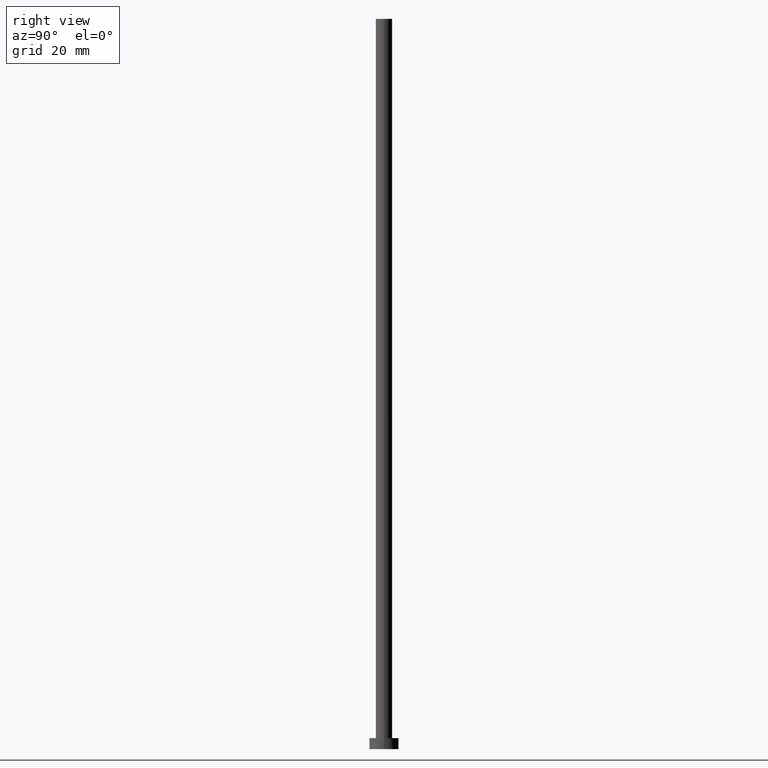
[diagram: clean part render]
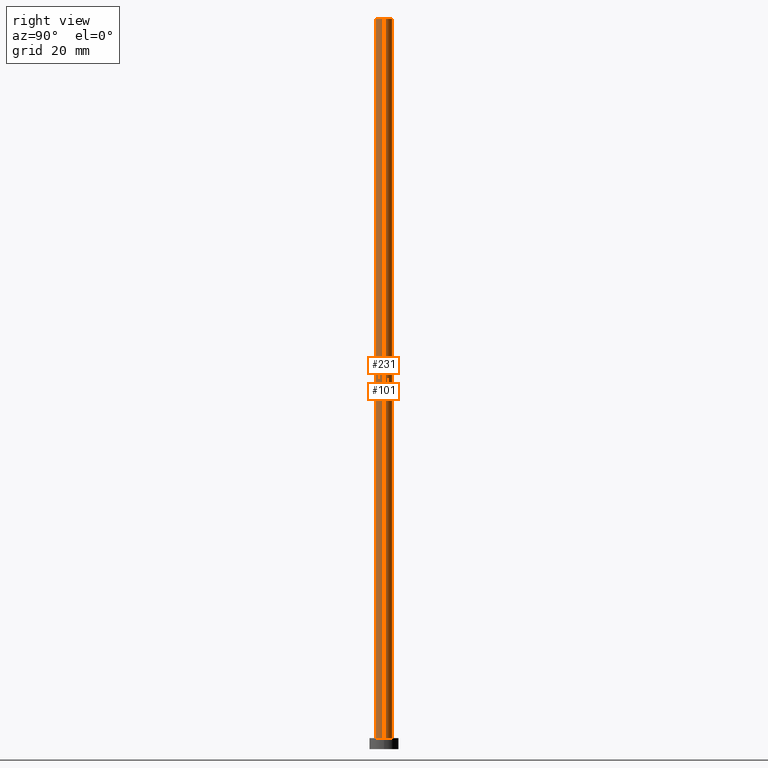
[diagram: same view with one multi-face feature highlighted, each face labeled with its STEP entity id]
A machine part, right view. The highlighted faces form ONE feature: a constant-radius fillet chain: 2 tangent blend faces with common blend radius 2.25 mm. The faces share edges in the B-rep.
Their STEP definitions:
[1] entity #101 (Cylinder):
#4 = CIRCLE ( 'NONE', #162, 2.250000000000000000 ) ;
#9 = VERTEX_POINT ( 'NONE', #127 ) ;
#12 = LINE ( 'NONE', #119, #239 ) ;
#14 = EDGE_LOOP ( 'NONE', ( #168, #206, #232, #84 ) ) ;
#18 = FACE_OUTER_BOUND ( 'NONE', #14, .T. ) ;
#21 = CARTESIAN_POINT ( 'NONE',  ( -2.250000000000000000, 0.000000000000000000, 200.0000000000000000 ) ) ;
#24 = DIRECTION ( 'NONE',  ( -1.000000000000000000, 0.000000000000000000, 0.000000000000000000 ) ) ;
#37 = DIRECTION ( 'NONE',  ( 1.000000000000000000, 0.000000000000000000, 0.000000000000000000 ) ) ;
#50 = CYLINDRICAL_SURFACE ( 'NONE', #223, 2.250000000000000000 ) ;
#55 = LINE ( 'NONE', #228, #219 ) ;
#57 = DIRECTION ( 'NONE',  ( -0.000000000000000000, -0.000000000000000000, -1.000000000000000000 ) ) ;
#59 = DIRECTION ( 'NONE',  ( 0.000000000000000000, 0.000000000000000000, 1.000000000000000000 ) ) ;
#68 = DIRECTION ( 'NONE',  ( -0.000000000000000000, -0.000000000000000000, -1.000000000000000000 ) ) ;
#82 = EDGE_CURVE ( 'NONE', #147, #9, #55, .T. ) ;
#84 = ORIENTED_EDGE ( 'NONE', *, *, #82, .F. ) ;
#97 = CIRCLE ( 'NONE', #197, 2.250000000000000000 ) ;
#101 = ADVANCED_FACE ( 'NONE', ( #18 ), #50, .T. ) ;
#106 = VERTEX_POINT ( 'NONE', #250 ) ;
#113 = EDGE_CURVE ( 'NONE', #135, #106, #12, .T. ) ;
#119 = CARTESIAN_POINT ( 'NONE',  ( 2.250000000000000000, 2.755455298081544285E-16, 200.0000000000000000 ) ) ;
#127 = CARTESIAN_POINT ( 'NONE',  ( -2.250000000000000000, 0.000000000000000000, 3.000000000000000000 ) ) ;
#135 = VERTEX_POINT ( 'NONE', #235 ) ;
#147 = VERTEX_POINT ( 'NONE', #21 ) ;
#158 = EDGE_CURVE ( 'NONE', #106, #9, #4, .T. ) ;
#161 = CARTESIAN_POINT ( 'NONE',  ( 0.000000000000000000, 0.000000000000000000, 200.0000000000000000 ) ) ;
#162 = AXIS2_PLACEMENT_3D ( 'NONE', #178, #59, #37 ) ;
#168 = ORIENTED_EDGE ( 'NONE', *, *, #176, .F. ) ;
#176 = EDGE_CURVE ( 'NONE', #135, #147, #97, .T. ) ;
#177 = DIRECTION ( 'NONE',  ( 0.000000000000000000, 0.000000000000000000, 1.000000000000000000 ) ) ;
#178 = CARTESIAN_POINT ( 'NONE',  ( 0.000000000000000000, 0.000000000000000000, 3.000000000000000000 ) ) ;
#194 = DIRECTION ( 'NONE',  ( 1.000000000000000000, 0.000000000000000000, 0.000000000000000000 ) ) ;
#197 = AXIS2_PLACEMENT_3D ( 'NONE', #254, #177, #194 ) ;
#206 = ORIENTED_EDGE ( 'NONE', *, *, #113, .T. ) ;
#219 = VECTOR ( 'NONE', #68, 1000.000000000000000 ) ;
#223 = AXIS2_PLACEMENT_3D ( 'NONE', #161, #57, #24 ) ;
#228 = CARTESIAN_POINT ( 'NONE',  ( -2.250000000000000000, 0.000000000000000000, 200.0000000000000000 ) ) ;
#232 = ORIENTED_EDGE ( 'NONE', *, *, #158, .T. ) ;
#235 = CARTESIAN_POINT ( 'NONE',  ( 2.250000000000000000, 2.755455298081544285E-16, 200.0000000000000000 ) ) ;
#239 = VECTOR ( 'NONE', #253, 1000.000000000000000 ) ;
#250 = CARTESIAN_POINT ( 'NONE',  ( 2.250000000000000000, 2.755455298081544285E-16, 3.000000000000000000 ) ) ;
#253 = DIRECTION ( 'NONE',  ( -0.000000000000000000, -0.000000000000000000, -1.000000000000000000 ) ) ;
#254 = CARTESIAN_POINT ( 'NONE',  ( 0.000000000000000000, 0.000000000000000000, 200.0000000000000000 ) ) ;
[2] entity #231 (Cylinder):
#9 = VERTEX_POINT ( 'NONE', #127 ) ;
#12 = LINE ( 'NONE', #119, #239 ) ;
#21 = CARTESIAN_POINT ( 'NONE',  ( -2.250000000000000000, 0.000000000000000000, 200.0000000000000000 ) ) ;
#29 = ORIENTED_EDGE ( 'NONE', *, *, #61, .F. ) ;
#31 = AXIS2_PLACEMENT_3D ( 'NONE', #58, #78, #77 ) ;
#39 = CYLINDRICAL_SURFACE ( 'NONE', #144, 2.250000000000000000 ) ;
#55 = LINE ( 'NONE', #228, #219 ) ;
#58 = CARTESIAN_POINT ( 'NONE',  ( 0.000000000000000000, 0.000000000000000000, 3.000000000000000000 ) ) ;
#61 = EDGE_CURVE ( 'NONE', #147, #135, #67, .T. ) ;
#67 = CIRCLE ( 'NONE', #226, 2.250000000000000000 ) ;
#68 = DIRECTION ( 'NONE',  ( -0.000000000000000000, -0.000000000000000000, -1.000000000000000000 ) ) ;
#77 = DIRECTION ( 'NONE',  ( 1.000000000000000000, 0.000000000000000000, 0.000000000000000000 ) ) ;
#78 = DIRECTION ( 'NONE',  ( 0.000000000000000000, 0.000000000000000000, 1.000000000000000000 ) ) ;
#82 = EDGE_CURVE ( 'NONE', #147, #9, #55, .T. ) ;
#93 = EDGE_LOOP ( 'NONE', ( #130, #29, #108, #248 ) ) ;
#106 = VERTEX_POINT ( 'NONE', #250 ) ;
#108 = ORIENTED_EDGE ( 'NONE', *, *, #82, .T. ) ;
#113 = EDGE_CURVE ( 'NONE', #135, #106, #12, .T. ) ;
#119 = CARTESIAN_POINT ( 'NONE',  ( 2.250000000000000000, 2.755455298081544285E-16, 200.0000000000000000 ) ) ;
#123 = EDGE_CURVE ( 'NONE', #9, #106, #200, .T. ) ;
#127 = CARTESIAN_POINT ( 'NONE',  ( -2.250000000000000000, 0.000000000000000000, 3.000000000000000000 ) ) ;
#129 = DIRECTION ( 'NONE',  ( 0.000000000000000000, 0.000000000000000000, 1.000000000000000000 ) ) ;
#130 = ORIENTED_EDGE ( 'NONE', *, *, #113, .F. ) ;
#135 = VERTEX_POINT ( 'NONE', #235 ) ;
#136 = DIRECTION ( 'NONE',  ( -0.000000000000000000, -0.000000000000000000, -1.000000000000000000 ) ) ;
#144 = AXIS2_PLACEMENT_3D ( 'NONE', #196, #136, #249 ) ;
#146 = CARTESIAN_POINT ( 'NONE',  ( 0.000000000000000000, 0.000000000000000000, 200.0000000000000000 ) ) ;
#147 = VERTEX_POINT ( 'NONE', #21 ) ;
#196 = CARTESIAN_POINT ( 'NONE',  ( 0.000000000000000000, 0.000000000000000000, 200.0000000000000000 ) ) ;
#200 = CIRCLE ( 'NONE', #31, 2.250000000000000000 ) ;
#213 = DIRECTION ( 'NONE',  ( 1.000000000000000000, 0.000000000000000000, 0.000000000000000000 ) ) ;
#219 = VECTOR ( 'NONE', #68, 1000.000000000000000 ) ;
#220 = FACE_OUTER_BOUND ( 'NONE', #93, .T. ) ;
#226 = AXIS2_PLACEMENT_3D ( 'NONE', #146, #129, #213 ) ;
#228 = CARTESIAN_POINT ( 'NONE',  ( -2.250000000000000000, 0.000000000000000000, 200.0000000000000000 ) ) ;
#231 = ADVANCED_FACE ( 'NONE', ( #220 ), #39, .T. ) ;
#235 = CARTESIAN_POINT ( 'NONE',  ( 2.250000000000000000, 2.755455298081544285E-16, 200.0000000000000000 ) ) ;
#239 = VECTOR ( 'NONE', #253, 1000.000000000000000 ) ;
#248 = ORIENTED_EDGE ( 'NONE', *, *, #123, .T. ) ;
#249 = DIRECTION ( 'NONE',  ( -1.000000000000000000, 0.000000000000000000, 0.000000000000000000 ) ) ;
#250 = CARTESIAN_POINT ( 'NONE',  ( 2.250000000000000000, 2.755455298081544285E-16, 3.000000000000000000 ) ) ;
#253 = DIRECTION ( 'NONE',  ( -0.000000000000000000, -0.000000000000000000, -1.000000000000000000 ) ) ;